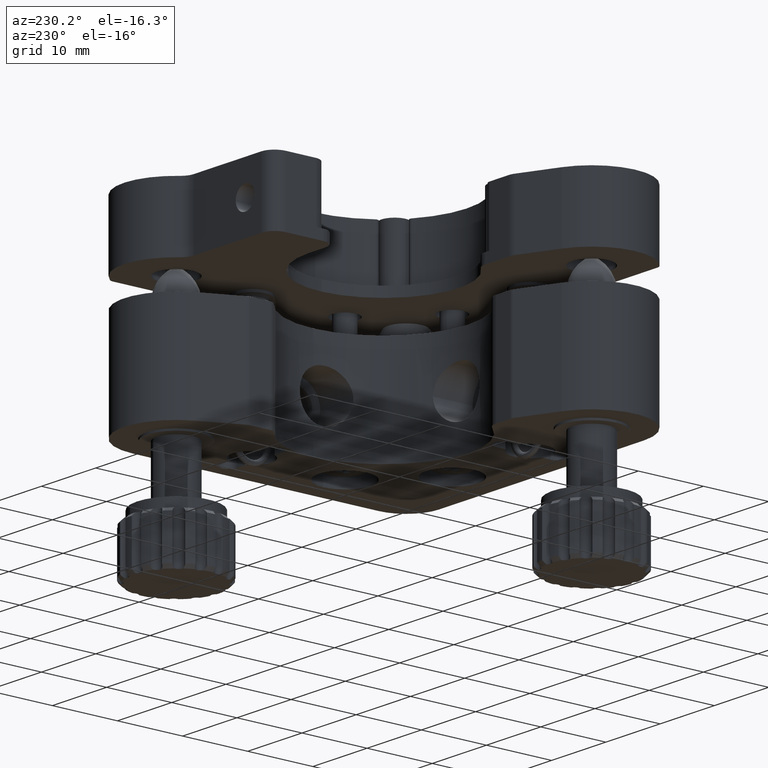
[diagram: clean part render]
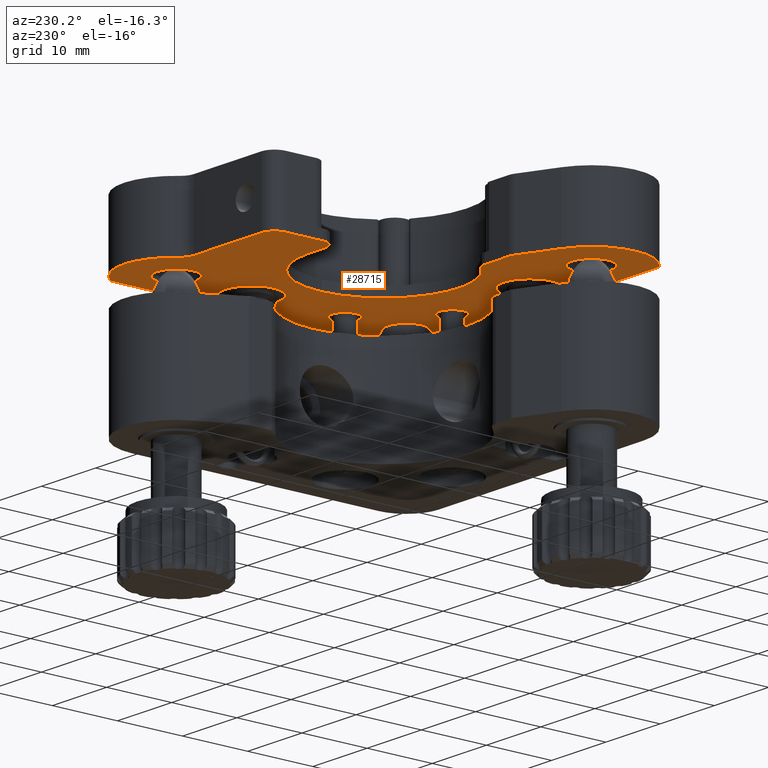
[diagram: same view with one face highlighted and labeled with its STEP entity id]
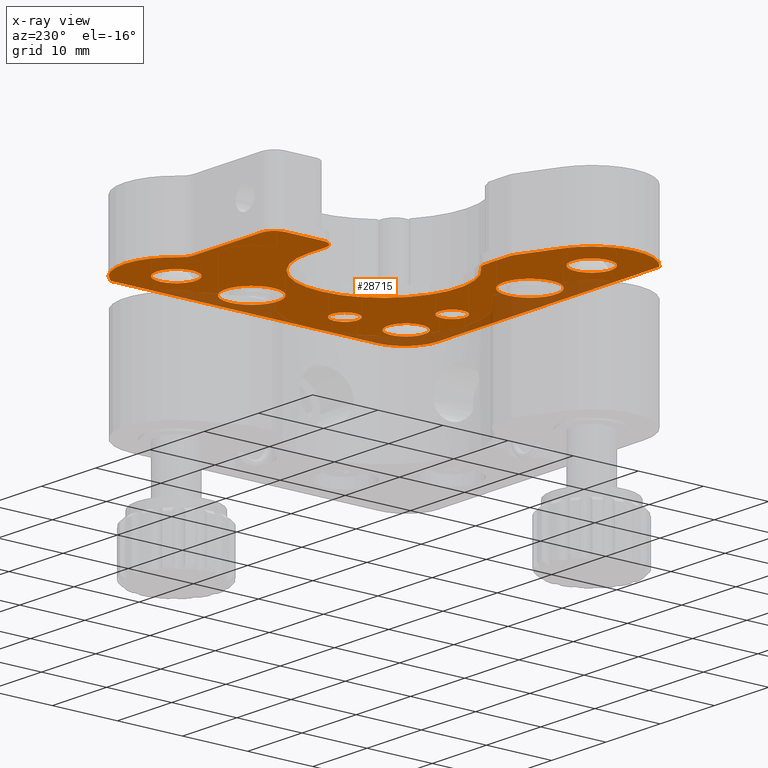
[diagram: x-ray of the same camera — body ghosted, the highlighted face saturated]
A machine part, auxiliary view. The second image highlights one B-rep face of the part: STEP entity #28715.
The next image is the same camera in x-ray: the body ghosted, the highlighted face saturated — about 18% of this face is hidden behind the body in this view.
In plain terms, the highlighted planar face has unit normal (0, 0, 1).
Its self-contained STEP definition (entity closure, byte-faithful):
#74 = EDGE_CURVE ( 'NONE', #29254, #11681, #18152, .T. ) ;
#307 = DIRECTION ( 'NONE',  ( -1.000000000000000000, 0.0000000000000000000, 0.0000000000000000000 ) ) ;
#482 = AXIS2_PLACEMENT_3D ( 'NONE', #18720, #2996, #21368 ) ;
#590 = ORIENTED_EDGE ( 'NONE', *, *, #25613, .T. ) ;
#715 = EDGE_CURVE ( 'NONE', #33184, #12495, #6738, .T. ) ;
#817 = CIRCLE ( 'NONE', #14293, 8.000000000000000000 ) ;
#915 = EDGE_CURVE ( 'NONE', #20837, #18485, #1782, .T. ) ;
#938 = CARTESIAN_POINT ( 'NONE',  ( 3.110670760908846000, 31.91778669584324700, 42.06366457255799000 ) ) ;
#985 = EDGE_CURVE ( 'NONE', #3626, #29893, #23580, .T. ) ;
#1067 = DIRECTION ( 'NONE',  ( 1.000000000000000000, 0.0000000000000000000, 0.0000000000000000000 ) ) ;
#1089 = EDGE_CURVE ( 'NONE', #21646, #17890, #17815, .T. ) ;
#1165 = DIRECTION ( 'NONE',  ( -1.000000000000000000, 0.0000000000000000000, 0.0000000000000000000 ) ) ;
#1266 = CARTESIAN_POINT ( 'NONE',  ( 12.19393658312054800, 54.91778669584324700, 42.06366457255799000 ) ) ;
#1456 = DIRECTION ( 'NONE',  ( -1.000000000000000000, 7.724296037066135200E-016, 0.0000000000000000000 ) ) ;
#1474 = DIRECTION ( 'NONE',  ( 1.000000000000000000, 0.0000000000000000000, 0.0000000000000000000 ) ) ;
#1782 = CIRCLE ( 'NONE', #29997, 3.000000000000002700 ) ;
#1838 = CARTESIAN_POINT ( 'NONE',  ( 35.19393658312055400, 46.71778669584324500, 42.06366457255799000 ) ) ;
#1884 = CARTESIAN_POINT ( 'NONE',  ( 31.69393658312055000, 58.71778669584324500, 42.06366457255799000 ) ) ;
#2316 = EDGE_CURVE ( 'NONE', #30952, #22148, #23479, .T. ) ;
#2493 = CIRCLE ( 'NONE', #31955, 4.000000000000003600 ) ;
#2730 = EDGE_LOOP ( 'NONE', ( #22933, #13355, #33478, #14665, #20135, #19312, #22353, #33294, #22679, #9521, #31912, #23611, #7574, #4772, #15410, #20037, #17166, #16067, #21132 ) ) ;
#2833 = CIRCLE ( 'NONE', #3668, 11.50000000000000400 ) ;
#2883 = DIRECTION ( 'NONE',  ( -1.000000000000000000, 0.0000000000000000000, 0.0000000000000000000 ) ) ;
#2996 = DIRECTION ( 'NONE',  ( 0.0000000000000000000, 0.0000000000000000000, 1.000000000000000000 ) ) ;
#3271 = FACE_OUTER_BOUND ( 'NONE', #2730, .T. ) ;
#3591 = DIRECTION ( 'NONE',  ( 1.000000000000000000, 0.0000000000000000000, 0.0000000000000000000 ) ) ;
#3607 = CARTESIAN_POINT ( 'NONE',  ( -0.1060634168794441500, 23.91778669584324000, 42.06366457255799000 ) ) ;
#3626 = VERTEX_POINT ( 'NONE', #33115 ) ;
#3668 = AXIS2_PLACEMENT_3D ( 'NONE', #11880, #30163, #14504 ) ;
#3933 = DIRECTION ( 'NONE',  ( 1.000000000000000000, -0.0000000000000000000, -0.0000000000000000000 ) ) ;
#4100 = ORIENTED_EDGE ( 'NONE', *, *, #16741, .F. ) ;
#4222 = VERTEX_POINT ( 'NONE', #7106 ) ;
#4483 = DIRECTION ( 'NONE',  ( -1.000000000000000000, 0.0000000000000000000, 0.0000000000000000000 ) ) ;
#4553 = AXIS2_PLACEMENT_3D ( 'NONE', #9693, #27987, #12341 ) ;
#4772 = ORIENTED_EDGE ( 'NONE', *, *, #1089, .F. ) ;
#4806 = DIRECTION ( 'NONE',  ( -1.000000000000000000, -0.0000000000000000000, -0.0000000000000000000 ) ) ;
#4906 = VERTEX_POINT ( 'NONE', #12059 ) ;
#4941 = FACE_BOUND ( 'NONE', #27661, .T. ) ;
#5000 = DIRECTION ( 'NONE',  ( 0.0000000000000000000, 0.0000000000000000000, 1.000000000000000000 ) ) ;
#5138 = EDGE_CURVE ( 'NONE', #18383, #12755, #12901, .T. ) ;
#5147 = AXIS2_PLACEMENT_3D ( 'NONE', #31698, #16102, #307 ) ;
#5195 = EDGE_CURVE ( 'NONE', #4906, #25183, #13286, .T. ) ;
#5471 = AXIS2_PLACEMENT_3D ( 'NONE', #30046, #14397, #32676 ) ;
#5614 = CARTESIAN_POINT ( 'NONE',  ( 26.19393658312055400, 23.41778669584324400, 42.06366457255799000 ) ) ;
#5796 = ORIENTED_EDGE ( 'NONE', *, *, #24561, .T. ) ;
#5862 = EDGE_CURVE ( 'NONE', #18500, #25954, #2493, .T. ) ;
#5872 = ORIENTED_EDGE ( 'NONE', *, *, #12914, .T. ) ;
#6061 = VERTEX_POINT ( 'NONE', #10047 ) ;
#6120 = AXIS2_PLACEMENT_3D ( 'NONE', #22246, #20185, #2883 ) ;
#6146 = CARTESIAN_POINT ( 'NONE',  ( 41.19393658312055400, 22.41778669584327900, 42.06366457255799000 ) ) ;
#6256 = DIRECTION ( 'NONE',  ( 1.000000000000000000, 0.0000000000000000000, 0.0000000000000000000 ) ) ;
#6337 = DIRECTION ( 'NONE',  ( 0.0000000000000000000, 0.0000000000000000000, -1.000000000000000000 ) ) ;
#6738 = CIRCLE ( 'NONE', #12510, 1.999999999999998200 ) ;
#6886 = VERTEX_POINT ( 'NONE', #14339 ) ;
#6890 = AXIS2_PLACEMENT_3D ( 'NONE', #14036, #32281, #16682 ) ;
#6899 = EDGE_CURVE ( 'NONE', #29893, #9619, #14975, .T. ) ;
#6941 = CARTESIAN_POINT ( 'NONE',  ( 35.19393658312055400, 32.41778669584324700, 42.06366457255799000 ) ) ;
#7106 = CARTESIAN_POINT ( 'NONE',  ( 14.19393658312055000, 62.71778669584324500, 42.06366457255799000 ) ) ;
#7154 = CARTESIAN_POINT ( 'NONE',  ( 41.19393658312055400, 22.41778669584327900, 42.06366457255799000 ) ) ;
#7160 = EDGE_CURVE ( 'NONE', #6061, #24956, #15810, .T. ) ;
#7347 = ORIENTED_EDGE ( 'NONE', *, *, #19552, .F. ) ;
#7574 = ORIENTED_EDGE ( 'NONE', *, *, #9709, .F. ) ;
#7713 = CARTESIAN_POINT ( 'NONE',  ( 2.297197474757255000, 33.74487761112844500, 42.06366457255799000 ) ) ;
#7820 = DIRECTION ( 'NONE',  ( 0.0000000000000000000, 0.0000000000000000000, 1.000000000000000000 ) ) ;
#7843 = CARTESIAN_POINT ( 'NONE',  ( 12.19393658312055000, 60.71778669584323800, 42.06366457255799000 ) ) ;
#8035 = EDGE_CURVE ( 'NONE', #18846, #3626, #817, .T. ) ;
#8045 = VERTEX_POINT ( 'NONE', #6146 ) ;
#8204 = EDGE_CURVE ( 'NONE', #6886, #8704, #33629, .T. ) ;
#8285 = CARTESIAN_POINT ( 'NONE',  ( 2.893936583120557200, 23.91778669584324000, 42.06366457255799000 ) ) ;
#8403 = LINE ( 'NONE', #7843, #16249 ) ;
#8496 = CARTESIAN_POINT ( 'NONE',  ( -4.436190435801630200, 17.41778669584324400, 42.06366457255799000 ) ) ;
#8704 = VERTEX_POINT ( 'NONE', #16790 ) ;
#8789 = VECTOR ( 'NONE', #32618, 1000.000000000000000 ) ;
#8791 = EDGE_CURVE ( 'NONE', #25183, #4906, #19262, .T. ) ;
#8900 = AXIS2_PLACEMENT_3D ( 'NONE', #10417, #28696, #13058 ) ;
#9006 = LINE ( 'NONE', #14587, #14345 ) ;
#9043 = EDGE_LOOP ( 'NONE', ( #19346, #33550 ) ) ;
#9088 = CARTESIAN_POINT ( 'NONE',  ( 40.97965086883483800, 63.66650328889716800, 42.06366457255799000 ) ) ;
#9135 = PLANE ( 'NONE',  #32998 ) ;
#9521 = ORIENTED_EDGE ( 'NONE', *, *, #23884, .F. ) ;
#9603 = DIRECTION ( 'NONE',  ( 1.000000000000000000, 0.0000000000000000000, 0.0000000000000000000 ) ) ;
#9619 = VERTEX_POINT ( 'NONE', #22830 ) ;
#9693 = CARTESIAN_POINT ( 'NONE',  ( 11.89393658312055600, 23.41778669584324400, 42.06366457255799000 ) ) ;
#9709 = EDGE_CURVE ( 'NONE', #17890, #4222, #18231, .T. ) ;
#9711 = CARTESIAN_POINT ( 'NONE',  ( 24.19393658312055400, 23.41778669584324400, 42.06366457255799000 ) ) ;
#9903 = EDGE_LOOP ( 'NONE', ( #12581, #4100 ) ) ;
#9977 = CIRCLE ( 'NONE', #29848, 2.799999999999997200 ) ;
#10029 = EDGE_CURVE ( 'NONE', #18674, #31413, #9977, .T. ) ;
#10047 = CARTESIAN_POINT ( 'NONE',  ( 17.19393658312055400, 52.91778669584324700, 42.06366457255799000 ) ) ;
#10162 = CARTESIAN_POINT ( 'NONE',  ( 28.69393658312055400, 41.41778669584324000, 42.06366457255799000 ) ) ;
#10310 = FACE_BOUND ( 'NONE', #15828, .T. ) ;
#10349 = DIRECTION ( 'NONE',  ( 0.0000000000000000000, 0.0000000000000000000, 1.000000000000000000 ) ) ;
#10417 = CARTESIAN_POINT ( 'NONE',  ( 34.69393658312055400, 23.41778669584324700, 42.06366457255799000 ) ) ;
#11273 = ORIENTED_EDGE ( 'NONE', *, *, #915, .F. ) ;
#11372 = LINE ( 'NONE', #19690, #17500 ) ;
#11631 = EDGE_CURVE ( 'NONE', #22148, #21646, #22117, .T. ) ;
#11666 = CIRCLE ( 'NONE', #6890, 4.999999999999997300 ) ;
#11681 = VERTEX_POINT ( 'NONE', #8285 ) ;
#11776 = DIRECTION ( 'NONE',  ( 0.0000000000000000000, 0.0000000000000000000, -1.000000000000000000 ) ) ;
#11807 = AXIS2_PLACEMENT_3D ( 'NONE', #18070, #18825, #19005 ) ;
#11833 = AXIS2_PLACEMENT_3D ( 'NONE', #13969, #14040, #1165 ) ;
#11880 = CARTESIAN_POINT ( 'NONE',  ( 17.19393658312055400, 41.41778669584324000, 42.06366457255799000 ) ) ;
#11895 = AXIS2_PLACEMENT_3D ( 'NONE', #6941, #25278, #9603 ) ;
#11901 = AXIS2_PLACEMENT_3D ( 'NONE', #22069, #6337, #24686 ) ;
#11910 = CARTESIAN_POINT ( 'NONE',  ( -4.436190435801630200, 18.41778669584324400, 42.06366457255799000 ) ) ;
#11941 = FACE_BOUND ( 'NONE', #9043, .T. ) ;
#12059 = CARTESIAN_POINT ( 'NONE',  ( 15.89393658312056000, 23.41778669584324400, 42.06366457255799000 ) ) ;
#12341 = DIRECTION ( 'NONE',  ( -1.000000000000000000, 0.0000000000000000000, 0.0000000000000000000 ) ) ;
#12495 = VERTEX_POINT ( 'NONE', #24282 ) ;
#12510 = AXIS2_PLACEMENT_3D ( 'NONE', #5614, #5000, #1474 ) ;
#12581 = ORIENTED_EDGE ( 'NONE', *, *, #74, .F. ) ;
#12655 = EDGE_CURVE ( 'NONE', #29646, #6061, #11372, .T. ) ;
#12755 = VERTEX_POINT ( 'NONE', #27897 ) ;
#12901 = CIRCLE ( 'NONE', #11807, 2.000000000000000000 ) ;
#12914 = EDGE_CURVE ( 'NONE', #31413, #18674, #29730, .T. ) ;
#13031 = DIRECTION ( 'NONE',  ( -0.9135454576426009800, -0.4067366430757998800, 0.0000000000000000000 ) ) ;
#13058 = DIRECTION ( 'NONE',  ( 1.000000000000000000, 0.0000000000000000000, 0.0000000000000000000 ) ) ;
#13133 = ORIENTED_EDGE ( 'NONE', *, *, #8204, .T. ) ;
#13286 = CIRCLE ( 'NONE', #32827, 4.000000000000003600 ) ;
#13355 = ORIENTED_EDGE ( 'NONE', *, *, #8035, .F. ) ;
#13628 = DIRECTION ( 'NONE',  ( 0.0000000000000000000, 0.0000000000000000000, 1.000000000000000000 ) ) ;
#13969 = CARTESIAN_POINT ( 'NONE',  ( 26.69393658312055400, 64.71778669584324500, 42.06366457255799000 ) ) ;
#14036 = CARTESIAN_POINT ( 'NONE',  ( 36.19393658312055400, 22.41778669584324700, 42.06366457255799000 ) ) ;
#14040 = DIRECTION ( 'NONE',  ( -0.0000000000000000000, -0.0000000000000000000, -1.000000000000000000 ) ) ;
#14173 = CARTESIAN_POINT ( 'NONE',  ( 17.19393658312055400, 41.41778669584324000, 42.06366457255799000 ) ) ;
#14293 = AXIS2_PLACEMENT_3D ( 'NONE', #3607, #21997, #6256 ) ;
#14339 = CARTESIAN_POINT ( 'NONE',  ( 33.19393658312055400, 32.41778669584324700, 42.06366457255799000 ) ) ;
#14345 = VECTOR ( 'NONE', #1456, 1000.000000000000000 ) ;
#14397 = DIRECTION ( 'NONE',  ( 0.0000000000000000000, 0.0000000000000000000, 1.000000000000000000 ) ) ;
#14504 = DIRECTION ( 'NONE',  ( 1.000000000000000000, 0.0000000000000000000, 0.0000000000000000000 ) ) ;
#14535 = DIRECTION ( 'NONE',  ( 1.000000000000000000, 0.0000000000000000000, -0.0000000000000000000 ) ) ;
#14587 = CARTESIAN_POINT ( 'NONE',  ( 7.602273536495104600, 33.91778669584324700, 42.06366457255799000 ) ) ;
#14665 = ORIENTED_EDGE ( 'NONE', *, *, #31879, .F. ) ;
#14681 = CARTESIAN_POINT ( 'NONE',  ( 37.49393658312055100, 23.41778669584324700, 42.06366457255799000 ) ) ;
#14952 = ORIENTED_EDGE ( 'NONE', *, *, #19246, .F. ) ;
#14975 = LINE ( 'NONE', #27485, #8789 ) ;
#15410 = ORIENTED_EDGE ( 'NONE', *, *, #11631, .F. ) ;
#15810 = CIRCLE ( 'NONE', #15865, 11.50000000000000400 ) ;
#15828 = EDGE_LOOP ( 'NONE', ( #590, #19135 ) ) ;
#15860 = LINE ( 'NONE', #7154, #21957 ) ;
#15865 = AXIS2_PLACEMENT_3D ( 'NONE', #14173, #32426, #16807 ) ;
#16067 = ORIENTED_EDGE ( 'NONE', *, *, #22015, .F. ) ;
#16102 = DIRECTION ( 'NONE',  ( 0.0000000000000000000, 0.0000000000000000000, -1.000000000000000000 ) ) ;
#16226 = DIRECTION ( 'NONE',  ( 0.0000000000000000000, 0.0000000000000000000, -1.000000000000000000 ) ) ;
#16249 = VECTOR ( 'NONE', #26185, 1000.000000000000000 ) ;
#16347 = CARTESIAN_POINT ( 'NONE',  ( 7.893936583120552800, 23.41778669584324400, 42.06366457255799000 ) ) ;
#16465 = DIRECTION ( 'NONE',  ( 0.0000000000000000000, 0.0000000000000000000, -1.000000000000000000 ) ) ;
#16502 = CARTESIAN_POINT ( 'NONE',  ( 34.69393658312055400, 58.71778669584324500, 42.06366457255799000 ) ) ;
#16682 = DIRECTION ( 'NONE',  ( 1.000000000000000000, 0.0000000000000000000, 0.0000000000000000000 ) ) ;
#16684 = EDGE_LOOP ( 'NONE', ( #23505, #5872 ) ) ;
#16741 = EDGE_CURVE ( 'NONE', #11681, #29254, #26888, .T. ) ;
#16790 = CARTESIAN_POINT ( 'NONE',  ( 37.19393658312055400, 32.41778669584324700, 42.06366457255799000 ) ) ;
#16798 = CARTESIAN_POINT ( 'NONE',  ( -3.106063416879445400, 23.91778669584324000, 42.06366457255799000 ) ) ;
#16807 = DIRECTION ( 'NONE',  ( 1.000000000000000000, 0.0000000000000000000, 0.0000000000000000000 ) ) ;
#16832 = CARTESIAN_POINT ( 'NONE',  ( -4.436190435801630200, 18.41778669584324400, 42.06366457255799000 ) ) ;
#16841 = DIRECTION ( 'NONE',  ( -0.0000000000000000000, -0.0000000000000000000, 1.000000000000000000 ) ) ;
#17008 = DIRECTION ( 'NONE',  ( 0.0000000000000000000, 0.0000000000000000000, 1.000000000000000000 ) ) ;
#17166 = ORIENTED_EDGE ( 'NONE', *, *, #26661, .F. ) ;
#17232 = FACE_BOUND ( 'NONE', #25197, .T. ) ;
#17500 = VECTOR ( 'NONE', #3933, 1000.000000000000000 ) ;
#17787 = VERTEX_POINT ( 'NONE', #24786 ) ;
#17815 = CIRCLE ( 'NONE', #11833, 2.000000000000001800 ) ;
#17890 = VERTEX_POINT ( 'NONE', #22494 ) ;
#17895 = CARTESIAN_POINT ( 'NONE',  ( 14.19393658312055000, 62.71778669584324500, 42.06366457255799000 ) ) ;
#18070 = CARTESIAN_POINT ( 'NONE',  ( 7.602273536495104600, 31.91778669584324700, 42.06366457255799000 ) ) ;
#18152 = CIRCLE ( 'NONE', #23219, 3.000000000000001300 ) ;
#18231 = LINE ( 'NONE', #17895, #25177 ) ;
#18268 = LINE ( 'NONE', #7713, #24410 ) ;
#18336 = DIRECTION ( 'NONE',  ( -1.000000000000000000, 0.0000000000000000000, 0.0000000000000000000 ) ) ;
#18383 = VERTEX_POINT ( 'NONE', #27586 ) ;
#18454 = DIRECTION ( 'NONE',  ( 1.000000000000000000, 0.0000000000000000000, 0.0000000000000000000 ) ) ;
#18485 = VERTEX_POINT ( 'NONE', #1884 ) ;
#18500 = VERTEX_POINT ( 'NONE', #30751 ) ;
#18674 = VERTEX_POINT ( 'NONE', #25172 ) ;
#18720 = CARTESIAN_POINT ( 'NONE',  ( 34.69393658312055400, 58.71778669584324500, 42.06366457255799000 ) ) ;
#18758 = AXIS2_PLACEMENT_3D ( 'NONE', #938, #19339, #3591 ) ;
#18825 = DIRECTION ( 'NONE',  ( 0.0000000000000000000, 0.0000000000000000000, 1.000000000000000000 ) ) ;
#18846 = VERTEX_POINT ( 'NONE', #28481 ) ;
#19005 = DIRECTION ( 'NONE',  ( -1.000000000000000000, 0.0000000000000000000, 0.0000000000000000000 ) ) ;
#19135 = ORIENTED_EDGE ( 'NONE', *, *, #715, .T. ) ;
#19246 = EDGE_CURVE ( 'NONE', #18485, #20837, #29724, .T. ) ;
#19262 = CIRCLE ( 'NONE', #4553, 4.000000000000003600 ) ;
#19312 = ORIENTED_EDGE ( 'NONE', *, *, #5138, .F. ) ;
#19339 = DIRECTION ( 'NONE',  ( 0.0000000000000000000, 0.0000000000000000000, 1.000000000000000000 ) ) ;
#19346 = ORIENTED_EDGE ( 'NONE', *, *, #8791, .F. ) ;
#19552 = EDGE_CURVE ( 'NONE', #25954, #18500, #32580, .T. ) ;
#19690 = CARTESIAN_POINT ( 'NONE',  ( 17.19393658312055400, 52.91778669584324700, 42.06366457255799000 ) ) ;
#19954 = EDGE_LOOP ( 'NONE', ( #31337, #7347 ) ) ;
#20037 = ORIENTED_EDGE ( 'NONE', *, *, #2316, .F. ) ;
#20135 = ORIENTED_EDGE ( 'NONE', *, *, #30878, .F. ) ;
#20185 = DIRECTION ( 'NONE',  ( 0.0000000000000000000, 0.0000000000000000000, 1.000000000000000000 ) ) ;
#20186 = DIRECTION ( 'NONE',  ( -1.000000000000000000, 0.0000000000000000000, 0.0000000000000000000 ) ) ;
#20230 = DIRECTION ( 'NONE',  ( 0.0000000000000000000, 0.0000000000000000000, -1.000000000000000000 ) ) ;
#20837 = VERTEX_POINT ( 'NONE', #22996 ) ;
#20906 = CARTESIAN_POINT ( 'NONE',  ( 14.19393658312055000, 52.91778669584324700, 42.06366457255799000 ) ) ;
#21132 = ORIENTED_EDGE ( 'NONE', *, *, #6899, .F. ) ;
#21368 = DIRECTION ( 'NONE',  ( 1.000000000000000000, 0.0000000000000000000, 0.0000000000000000000 ) ) ;
#21469 = EDGE_CURVE ( 'NONE', #33459, #18846, #18268, .T. ) ;
#21569 = CARTESIAN_POINT ( 'NONE',  ( -0.1060634168794441500, 23.91778669584324000, 42.06366457255799000 ) ) ;
#21646 = VERTEX_POINT ( 'NONE', #30954 ) ;
#21662 = CIRCLE ( 'NONE', #18758, 1.999999999999997300 ) ;
#21678 = DIRECTION ( 'NONE',  ( -1.000000000000000000, 0.0000000000000000000, 0.0000000000000000000 ) ) ;
#21712 = CIRCLE ( 'NONE', #26295, 2.000000000000000000 ) ;
#21957 = VECTOR ( 'NONE', #25480, 1000.000000000000000 ) ;
#21997 = DIRECTION ( 'NONE',  ( 0.0000000000000000000, 0.0000000000000000000, 1.000000000000000000 ) ) ;
#22015 = EDGE_CURVE ( 'NONE', #9619, #8045, #11666, .T. ) ;
#22069 = CARTESIAN_POINT ( 'NONE',  ( 34.69393658312055400, 58.71778669584324500, 42.06366457255799000 ) ) ;
#22117 = CIRCLE ( 'NONE', #482, 8.000000000000000000 ) ;
#22148 = VERTEX_POINT ( 'NONE', #9088 ) ;
#22246 = CARTESIAN_POINT ( 'NONE',  ( 40.19393658312055400, 63.04791371476543600, 42.06366457255799000 ) ) ;
#22353 = ORIENTED_EDGE ( 'NONE', *, *, #24588, .F. ) ;
#22472 = VERTEX_POINT ( 'NONE', #24851 ) ;
#22494 = CARTESIAN_POINT ( 'NONE',  ( 26.69393658312055400, 62.71778669584324500, 42.06366457255799000 ) ) ;
#22679 = ORIENTED_EDGE ( 'NONE', *, *, #12655, .F. ) ;
#22720 = CARTESIAN_POINT ( 'NONE',  ( 41.19393658312055400, 63.04791371476543600, 42.06366457255799000 ) ) ;
#22830 = CARTESIAN_POINT ( 'NONE',  ( 36.19393658312051800, 17.41778669584324400, 42.06366457255799000 ) ) ;
#22933 = ORIENTED_EDGE ( 'NONE', *, *, #985, .F. ) ;
#22996 = CARTESIAN_POINT ( 'NONE',  ( 37.69393658312055400, 58.71778669584324500, 42.06366457255799000 ) ) ;
#23219 = AXIS2_PLACEMENT_3D ( 'NONE', #21569, #16226, #21678 ) ;
#23479 = CIRCLE ( 'NONE', #6120, 1.000000000000000900 ) ;
#23505 = ORIENTED_EDGE ( 'NONE', *, *, #10029, .T. ) ;
#23527 = CARTESIAN_POINT ( 'NONE',  ( 14.19393658312055000, 54.91778669584324700, 42.06366457255799000 ) ) ;
#23580 = CIRCLE ( 'NONE', #33526, 1.000000000000001300 ) ;
#23611 = ORIENTED_EDGE ( 'NONE', *, *, #31749, .F. ) ;
#23778 = CIRCLE ( 'NONE', #5471, 2.000000000000001800 ) ;
#23884 = EDGE_CURVE ( 'NONE', #26530, #29646, #21712, .T. ) ;
#24013 = CARTESIAN_POINT ( 'NONE',  ( 2.297197474757255000, 33.74487761112844500, 42.06366457255799000 ) ) ;
#24218 = FACE_BOUND ( 'NONE', #16684, .T. ) ;
#24282 = CARTESIAN_POINT ( 'NONE',  ( 28.19393658312055000, 23.41778669584324400, 42.06366457255799000 ) ) ;
#24410 = VECTOR ( 'NONE', #13031, 1000.000000000000200 ) ;
#24561 = EDGE_CURVE ( 'NONE', #8704, #6886, #23778, .T. ) ;
#24588 = EDGE_CURVE ( 'NONE', #24956, #18383, #2833, .T. ) ;
#24686 = DIRECTION ( 'NONE',  ( -1.000000000000000000, 0.0000000000000000000, 0.0000000000000000000 ) ) ;
#24786 = CARTESIAN_POINT ( 'NONE',  ( 12.19393658312055000, 60.71778669584323800, 42.06366457255799000 ) ) ;
#24850 = CARTESIAN_POINT ( 'NONE',  ( 39.19393658312056100, 46.71778669584324500, 42.06366457255799000 ) ) ;
#24851 = CARTESIAN_POINT ( 'NONE',  ( 3.110670760908852600, 33.91778669584324700, 42.06366457255799000 ) ) ;
#24956 = VERTEX_POINT ( 'NONE', #10162 ) ;
#25172 = CARTESIAN_POINT ( 'NONE',  ( 31.89393658312055600, 23.41778669584324700, 42.06366457255799000 ) ) ;
#25177 = VECTOR ( 'NONE', #4806, 1000.000000000000000 ) ;
#25183 = VERTEX_POINT ( 'NONE', #16347 ) ;
#25197 = EDGE_LOOP ( 'NONE', ( #5796, #13133 ) ) ;
#25278 = DIRECTION ( 'NONE',  ( 0.0000000000000000000, 0.0000000000000000000, 1.000000000000000000 ) ) ;
#25480 = DIRECTION ( 'NONE',  ( 1.067387430987427200E-017, 1.000000000000000000, 0.0000000000000000000 ) ) ;
#25613 = EDGE_CURVE ( 'NONE', #12495, #33184, #29771, .T. ) ;
#25849 = DIRECTION ( 'NONE',  ( 0.0000000000000000000, 0.0000000000000000000, -1.000000000000000000 ) ) ;
#25954 = VERTEX_POINT ( 'NONE', #24850 ) ;
#26027 = CARTESIAN_POINT ( 'NONE',  ( 26.19393658312055400, 23.41778669584324400, 42.06366457255799000 ) ) ;
#26157 = DIRECTION ( 'NONE',  ( -1.000000000000000000, 0.0000000000000000000, 0.0000000000000000000 ) ) ;
#26185 = DIRECTION ( 'NONE',  ( 0.0000000000000000000, -1.000000000000000000, 0.0000000000000000000 ) ) ;
#26295 = AXIS2_PLACEMENT_3D ( 'NONE', #23527, #7820, #26157 ) ;
#26530 = VERTEX_POINT ( 'NONE', #1266 ) ;
#26661 = EDGE_CURVE ( 'NONE', #8045, #30952, #15860, .T. ) ;
#26865 = EDGE_CURVE ( 'NONE', #17787, #26530, #8403, .T. ) ;
#26888 = CIRCLE ( 'NONE', #5147, 3.000000000000001300 ) ;
#27433 = CARTESIAN_POINT ( 'NONE',  ( 35.19393658312055400, 46.71778669584324500, 42.06366457255799000 ) ) ;
#27485 = CARTESIAN_POINT ( 'NONE',  ( 36.19393658312051800, 17.41778669584324400, 42.06366457255799000 ) ) ;
#27586 = CARTESIAN_POINT ( 'NONE',  ( 9.023260654513691700, 33.32519410325065200, 42.06366457255799000 ) ) ;
#27661 = EDGE_LOOP ( 'NONE', ( #14952, #11273 ) ) ;
#27897 = CARTESIAN_POINT ( 'NONE',  ( 7.602273536495104600, 33.91778669584324700, 42.06366457255799000 ) ) ;
#27987 = DIRECTION ( 'NONE',  ( 0.0000000000000000000, 0.0000000000000000000, -1.000000000000000000 ) ) ;
#28481 = CARTESIAN_POINT ( 'NONE',  ( -3.359956561485855100, 31.22615035698404600, 42.06366457255799000 ) ) ;
#28625 = DIRECTION ( 'NONE',  ( 1.000000000000000000, 0.0000000000000000000, 0.0000000000000000000 ) ) ;
#28696 = DIRECTION ( 'NONE',  ( -0.0000000000000000000, -0.0000000000000000000, 1.000000000000000000 ) ) ;
#28715 = ADVANCED_FACE ( 'NONE', ( #11941, #31138, #31947, #4941, #24218, #17232, #10310, #3271 ), #9135, .F. ) ;
#29031 = CIRCLE ( 'NONE', #31651, 2.000000000000000000 ) ;
#29254 = VERTEX_POINT ( 'NONE', #16798 ) ;
#29300 = CARTESIAN_POINT ( 'NONE',  ( 14.19393658312055000, 60.71778669584323800, 42.06366457255799000 ) ) ;
#29646 = VERTEX_POINT ( 'NONE', #20906 ) ;
#29724 = CIRCLE ( 'NONE', #11901, 3.000000000000002700 ) ;
#29730 = CIRCLE ( 'NONE', #8900, 2.799999999999997200 ) ;
#29771 = CIRCLE ( 'NONE', #32218, 1.999999999999998200 ) ;
#29848 = AXIS2_PLACEMENT_3D ( 'NONE', #32463, #16841, #1067 ) ;
#29893 = VERTEX_POINT ( 'NONE', #8496 ) ;
#29997 = AXIS2_PLACEMENT_3D ( 'NONE', #16502, #16465, #20186 ) ;
#30042 = DIRECTION ( 'NONE',  ( -1.000000000000000000, 0.0000000000000000000, 0.0000000000000000000 ) ) ;
#30046 = CARTESIAN_POINT ( 'NONE',  ( 35.19393658312055400, 32.41778669584324700, 42.06366457255799000 ) ) ;
#30163 = DIRECTION ( 'NONE',  ( -0.0000000000000000000, -0.0000000000000000000, -1.000000000000000000 ) ) ;
#30189 = DIRECTION ( 'NONE',  ( 0.0000000000000000000, 0.0000000000000000000, 1.000000000000000000 ) ) ;
#30652 = CARTESIAN_POINT ( 'NONE',  ( 11.89393658312055600, 23.41778669584324400, 42.06366457255799000 ) ) ;
#30751 = CARTESIAN_POINT ( 'NONE',  ( 31.19393658312055000, 46.71778669584324500, 42.06366457255799000 ) ) ;
#30878 = EDGE_CURVE ( 'NONE', #12755, #22472, #9006, .T. ) ;
#30952 = VERTEX_POINT ( 'NONE', #22720 ) ;
#30954 = CARTESIAN_POINT ( 'NONE',  ( 28.29393658312055500, 63.51778669584323500, 42.06366457255799000 ) ) ;
#31138 = FACE_BOUND ( 'NONE', #19954, .T. ) ;
#31160 = AXIS2_PLACEMENT_3D ( 'NONE', #1838, #20230, #4483 ) ;
#31337 = ORIENTED_EDGE ( 'NONE', *, *, #5862, .F. ) ;
#31413 = VERTEX_POINT ( 'NONE', #14681 ) ;
#31651 = AXIS2_PLACEMENT_3D ( 'NONE', #29300, #13628, #31875 ) ;
#31698 = CARTESIAN_POINT ( 'NONE',  ( -0.1060634168794441500, 23.91778669584324000, 42.06366457255799000 ) ) ;
#31749 = EDGE_CURVE ( 'NONE', #4222, #17787, #29031, .T. ) ;
#31875 = DIRECTION ( 'NONE',  ( -1.000000000000000000, 0.0000000000000000000, 0.0000000000000000000 ) ) ;
#31879 = EDGE_CURVE ( 'NONE', #22472, #33459, #21662, .T. ) ;
#31912 = ORIENTED_EDGE ( 'NONE', *, *, #26865, .F. ) ;
#31947 = FACE_BOUND ( 'NONE', #9903, .T. ) ;
#31955 = AXIS2_PLACEMENT_3D ( 'NONE', #27433, #11776, #30042 ) ;
#32218 = AXIS2_PLACEMENT_3D ( 'NONE', #26027, #10349, #28625 ) ;
#32281 = DIRECTION ( 'NONE',  ( 0.0000000000000000000, 0.0000000000000000000, 1.000000000000000000 ) ) ;
#32426 = DIRECTION ( 'NONE',  ( -0.0000000000000000000, -0.0000000000000000000, -1.000000000000000000 ) ) ;
#32463 = CARTESIAN_POINT ( 'NONE',  ( 34.69393658312055400, 23.41778669584324700, 42.06366457255799000 ) ) ;
#32580 = CIRCLE ( 'NONE', #31160, 4.000000000000003600 ) ;
#32618 = DIRECTION ( 'NONE',  ( 1.000000000000000000, 6.938018301418278900E-017, -0.0000000000000000000 ) ) ;
#32676 = DIRECTION ( 'NONE',  ( 1.000000000000000000, 0.0000000000000000000, 0.0000000000000000000 ) ) ;
#32827 = AXIS2_PLACEMENT_3D ( 'NONE', #30652, #25849, #18336 ) ;
#32998 = AXIS2_PLACEMENT_3D ( 'NONE', #11910, #30189, #14535 ) ;
#33115 = CARTESIAN_POINT ( 'NONE',  ( -5.054780009933382200, 17.63207241012895600, 42.06366457255799000 ) ) ;
#33184 = VERTEX_POINT ( 'NONE', #9711 ) ;
#33294 = ORIENTED_EDGE ( 'NONE', *, *, #7160, .F. ) ;
#33459 = VERTEX_POINT ( 'NONE', #24013 ) ;
#33478 = ORIENTED_EDGE ( 'NONE', *, *, #21469, .F. ) ;
#33526 = AXIS2_PLACEMENT_3D ( 'NONE', #16832, #17008, #18454 ) ;
#33550 = ORIENTED_EDGE ( 'NONE', *, *, #5195, .F. ) ;
#33629 = CIRCLE ( 'NONE', #11895, 2.000000000000001800 ) ;